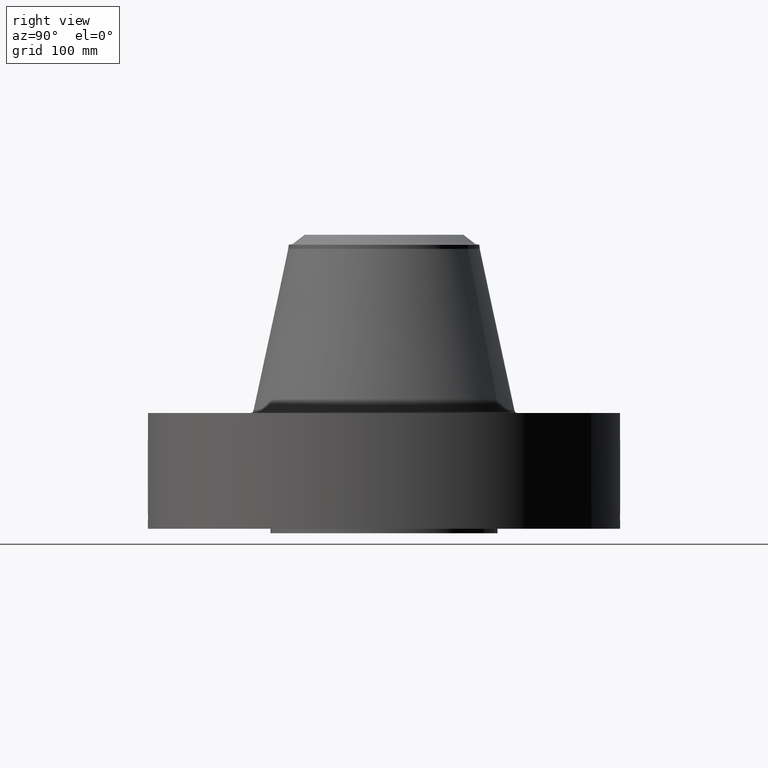
[diagram: clean part render]
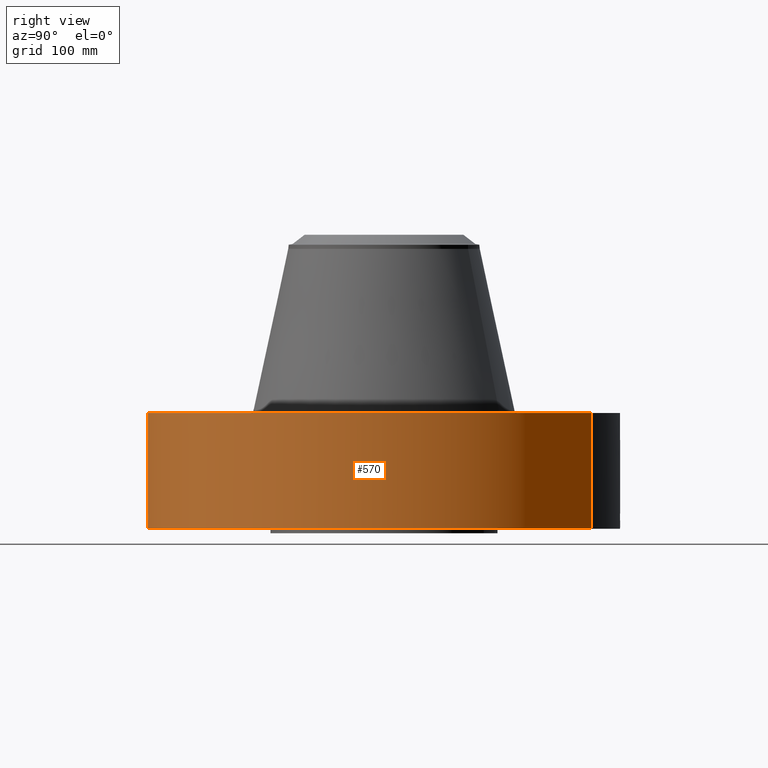
[diagram: same view with one face highlighted and labeled with its STEP entity id]
A machine part, right view. The second image highlights one B-rep face of the part: STEP entity #570.
In plain terms, the highlighted cylindrical surface (partial cylindrical patch) has radius 336.55 mm, axis along (0, 0, -1).
Its self-contained STEP definition (entity closure, byte-faithful):
#38=AXIS2_PLACEMENT_3D('Cylinder Axis2P3D',#35,#36,#37) ;
#169=AXIS2_PLACEMENT_3D('Circle Axis2P3D',#167,#168,$) ;
#474=AXIS2_PLACEMENT_3D('Circle Axis2P3D',#472,#473,$) ;
#35=CARTESIAN_POINT('Axis2P3D Location',(0.,0.,8.37500000003)) ;
#44=CARTESIAN_POINT('Vertex',(-6.35238838653,-11.6279689451,0.250000000001)) ;
#46=CARTESIAN_POINT('Vertex',(6.35238838653,11.6279689451,0.250000000001)) ;
#49=CARTESIAN_POINT('Line Origine',(-6.35238838653,-11.6279689451,3.50000000001)) ;
#53=CARTESIAN_POINT('Vertex',(-6.35238838653,-11.6279689451,6.75000000003)) ;
#60=CARTESIAN_POINT('Vertex',(6.35238838653,11.6279689451,6.75000000003)) ;
#63=CARTESIAN_POINT('Line Origine',(6.35238838653,11.6279689451,3.50000000001)) ;
#167=CARTESIAN_POINT('Axis2P3D Location',(0.,0.,0.250000000001)) ;
#472=CARTESIAN_POINT('Axis2P3D Location',(0.,0.,6.75000000003)) ;
#484=CARTESIAN_POINT('Control Point',(0.000716182179024,-13.2499999807,1.29411846097)) ;
#485=CARTESIAN_POINT('Control Point',(0.0191502653145,-13.2499989843,1.29408121945)) ;
#486=CARTESIAN_POINT('Control Point',(0.0375810939813,-13.2499592085,1.29260034336)) ;
#487=CARTESIAN_POINT('Control Point',(0.0557843614543,-13.2498825695,1.28969405279)) ;
#488=CARTESIAN_POINT('Vertex',(0.000715776774679,-13.2499999807,1.29411851031)) ;
#490=CARTESIAN_POINT('Vertex',(0.0557753377726,-13.2498828606,1.2896955122)) ;
#494=CARTESIAN_POINT('Control Point',(0.0557752409463,-13.2498826079,1.2896949601)) ;
#495=CARTESIAN_POINT('Control Point',(0.0960317888699,-13.2497131484,1.28519648012)) ;
#496=CARTESIAN_POINT('Control Point',(0.135627700012,-13.2493559782,1.27336881107)) ;
#497=CARTESIAN_POINT('Control Point',(0.172076085037,-13.2488825877,1.25501398008)) ;
#498=CARTESIAN_POINT('Vertex',(0.172076085037,-13.2488825877,1.25501398008)) ;
#502=CARTESIAN_POINT('Control Point',(0.0308574974484,-13.2499640685,0.531177487723)) ;
#503=CARTESIAN_POINT('Control Point',(0.100043950935,-13.249802942,0.53994175403)) ;
#504=CARTESIAN_POINT('Control Point',(0.166894350062,-13.2491956705,0.564145361277)) ;
#505=CARTESIAN_POINT('Control Point',(0.226589153242,-13.2482117099,0.6029618533)) ;
#506=CARTESIAN_POINT('Control Point',(0.299033939317,-13.2466912427,0.677002948608)) ;
#507=CARTESIAN_POINT('Control Point',(0.343806497753,-13.2455487155,0.767252961406)) ;
#508=CARTESIAN_POINT('Control Point',(0.355258005292,-13.2452407762,0.797964520687)) ;
#509=CARTESIAN_POINT('Control Point',(0.373767359905,-13.2447311356,0.869263562205)) ;
#510=CARTESIAN_POINT('Control Point',(0.375440893881,-13.2446781575,0.942604838015)) ;
#511=CARTESIAN_POINT('Control Point',(0.371062917438,-13.244805279,0.983230149875)) ;
#512=CARTESIAN_POINT('Control Point',(0.348620721246,-13.2454396498,1.07565637282)) ;
#513=CARTESIAN_POINT('Control Point',(0.299242591265,-13.2466708422,1.15702689299)) ;
#514=CARTESIAN_POINT('Control Point',(0.262809100424,-13.247490619,1.19795213548)) ;
#515=CARTESIAN_POINT('Control Point',(0.219645572182,-13.2482647566,1.23105873449)) ;
#516=CARTESIAN_POINT('Control Point',(0.172076085037,-13.2488825877,1.25501398008)) ;
#517=CARTESIAN_POINT('Vertex',(0.0308574974484,-13.2499640685,0.531177487723)) ;
#521=CARTESIAN_POINT('Control Point',(0.0308574974484,-13.2499640685,0.531177487723)) ;
#522=CARTESIAN_POINT('Control Point',(0.0205665787994,-13.2499880347,0.530872867649)) ;
#523=CARTESIAN_POINT('Control Point',(0.0102686489959,-13.2500000022,0.530938766678)) ;
#524=CARTESIAN_POINT('Control Point',(-2.72878355196E-006,-13.2500000001,0.531374667805)) ;
#525=CARTESIAN_POINT('Vertex',(-2.72878354359E-006,-13.2500000001,0.531374667805)) ;
#529=CARTESIAN_POINT('Control Point',(-0.192757893617,-13.2485978275,0.587169898879)) ;
#530=CARTESIAN_POINT('Control Point',(-0.149056428855,-13.2492336535,0.561897250206)) ;
#531=CARTESIAN_POINT('Control Point',(-0.101125994612,-13.2497395629,0.543730098778)) ;
#532=CARTESIAN_POINT('Control Point',(-0.0508093391959,-13.2499999896,0.533530819167)) ;
#533=CARTESIAN_POINT('Control Point',(-2.72878356371E-006,-13.2500000001,0.531374667805)) ;
#534=CARTESIAN_POINT('Vertex',(-0.192757893617,-13.2485978275,0.587169898879)) ;
#538=CARTESIAN_POINT('Control Point',(-0.192757893617,-13.2485978275,0.587169898879)) ;
#539=CARTESIAN_POINT('Control Point',(-0.249681211158,-13.2477696328,0.620088774015)) ;
#540=CARTESIAN_POINT('Control Point',(-0.299897745911,-13.2467332348,0.664307981501)) ;
#541=CARTESIAN_POINT('Control Point',(-0.340272602361,-13.2456768452,0.718329959235)) ;
#542=CARTESIAN_POINT('Control Point',(-0.384786930333,-13.2444230771,0.816408681381)) ;
#543=CARTESIAN_POINT('Control Point',(-0.393565265395,-13.2441521437,0.921704502706)) ;
#544=CARTESIAN_POINT('Control Point',(-0.391517982915,-13.2442146621,0.961814118149)) ;
#545=CARTESIAN_POINT('Control Point',(-0.377486119227,-13.2446358495,1.03665946438)) ;
#546=CARTESIAN_POINT('Control Point',(-0.34549204975,-13.2455094413,1.10505084832)) ;
#547=CARTESIAN_POINT('Control Point',(-0.326475931335,-13.246002738,1.13546988076)) ;
#548=CARTESIAN_POINT('Control Point',(-0.264616207971,-13.2474708185,1.21225153131)) ;
#549=CARTESIAN_POINT('Control Point',(-0.181234582802,-13.2489343562,1.26546431628)) ;
#550=CARTESIAN_POINT('Control Point',(-0.122123736438,-13.2496537486,1.2876337655)) ;
#551=CARTESIAN_POINT('Control Point',(-0.0605777055163,-13.2500001183,1.29712427102)) ;
#552=CARTESIAN_POINT('Control Point',(2.58579355407E-005,-13.25,1.2941529843)) ;
#553=CARTESIAN_POINT('Vertex',(2.5857935545E-005,-13.25,1.2941529843)) ;
#557=CARTESIAN_POINT('Control Point',(0.000715776764951,-13.2499999807,1.2941185103)) ;
#558=CARTESIAN_POINT('Control Point',(0.000370841803575,-13.2499999994,1.29413607037)) ;
#559=CARTESIAN_POINT('Control Point',(2.58579407351E-005,-13.25,1.2941529843)) ;
#36=DIRECTION('Axis2P3D Direction',(0.,0.,-0.0393700787402)) ;
#37=DIRECTION('Axis2P3D XDirection',(0.0188750212049,0.0345504945626,0.)) ;
#50=DIRECTION('Vector Direction',(0.,0.,-0.0393700787402)) ;
#64=DIRECTION('Vector Direction',(0.,0.,-0.0393700787402)) ;
#168=DIRECTION('Axis2P3D Direction',(0.,0.,-0.0393700787402)) ;
#473=DIRECTION('Axis2P3D Direction',(0.,0.,-0.0393700787402)) ;
#51=VECTOR('Line Direction',#50,0.0393700787402) ;
#65=VECTOR('Line Direction',#64,0.0393700787402) ;
#478=ORIENTED_EDGE('',*,*,#171,.F.) ;
#479=ORIENTED_EDGE('',*,*,#67,.T.) ;
#480=ORIENTED_EDGE('',*,*,#476,.T.) ;
#481=ORIENTED_EDGE('',*,*,#55,.F.) ;
#562=ORIENTED_EDGE('',*,*,#492,.T.) ;
#563=ORIENTED_EDGE('',*,*,#500,.T.) ;
#564=ORIENTED_EDGE('',*,*,#519,.F.) ;
#565=ORIENTED_EDGE('',*,*,#527,.T.) ;
#566=ORIENTED_EDGE('',*,*,#536,.F.) ;
#567=ORIENTED_EDGE('',*,*,#555,.T.) ;
#568=ORIENTED_EDGE('',*,*,#560,.F.) ;
#569=FACE_BOUND('',#561,.T.) ;
#570=ADVANCED_FACE('PartBody',(#482,#569),#39,.T.) ;
#483=B_SPLINE_CURVE_WITH_KNOTS('',3,(#484,#485,#486,#487),.UNSPECIFIED.,.F.,.U.,(4,4),(34.6164759059,36.6615629468),.UNSPECIFIED.) ;
#493=B_SPLINE_CURVE_WITH_KNOTS('',3,(#494,#495,#496,#497),.UNSPECIFIED.,.F.,.U.,(4,4),(0.,4.55152621404),.UNSPECIFIED.) ;
#501=B_SPLINE_CURVE_WITH_KNOTS('',5,(#502,#503,#504,#505,#506,#507,#508,#509,#510,#511,#512,#513,#514,#515,#516),.UNSPECIFIED.,.F.,.U.,(6,3,3,3,6),(0.,12.1199799924,17.9789266805,25.3567714415,35.2572454702),.UNSPECIFIED.) ;
#520=B_SPLINE_CURVE_WITH_KNOTS('',3,(#521,#522,#523,#524),.UNSPECIFIED.,.F.,.U.,(4,4),(0.,1.0734791093),.UNSPECIFIED.) ;
#528=B_SPLINE_CURVE_WITH_KNOTS('',4,(#529,#530,#531,#532,#533),.UNSPECIFIED.,.F.,.U.,(5,5),(0.,7.07984666736),.UNSPECIFIED.) ;
#537=B_SPLINE_CURVE_WITH_KNOTS('',5,(#538,#539,#540,#541,#542,#543,#544,#545,#546,#547,#548,#549,#550,#551,#552),.UNSPECIFIED.,.F.,.U.,(6,3,3,3,6),(0.,11.5273128214,18.5849259191,24.9929543052,36.3210179403),.UNSPECIFIED.) ;
#556=B_SPLINE_CURVE_WITH_KNOTS('',2,(#557,#558,#559),.UNSPECIFIED.,.F.,.U.,(3,3),(1.02660278465,1.05239664294),.UNSPECIFIED.) ;
#170=CIRCLE('generated circle',#169,13.2500000001) ;
#475=CIRCLE('generated circle',#474,13.2500000001) ;
#39=CYLINDRICAL_SURFACE('generated cylinder',#38,13.2500000001) ;
#55=EDGE_CURVE('',#45,#54,#52,.F.) ;
#67=EDGE_CURVE('',#47,#61,#66,.F.) ;
#171=EDGE_CURVE('',#47,#45,#170,.T.) ;
#476=EDGE_CURVE('',#61,#54,#475,.T.) ;
#492=EDGE_CURVE('',#489,#491,#483,.T.) ;
#500=EDGE_CURVE('',#491,#499,#493,.T.) ;
#519=EDGE_CURVE('',#518,#499,#501,.T.) ;
#527=EDGE_CURVE('',#518,#526,#520,.T.) ;
#536=EDGE_CURVE('',#535,#526,#528,.T.) ;
#555=EDGE_CURVE('',#535,#554,#537,.T.) ;
#560=EDGE_CURVE('',#489,#554,#556,.T.) ;
#477=EDGE_LOOP('',(#478,#479,#480,#481)) ;
#561=EDGE_LOOP('',(#562,#563,#564,#565,#566,#567,#568)) ;
#482=FACE_OUTER_BOUND('',#477,.T.) ;
#52=LINE('Line',#49,#51) ;
#66=LINE('Line',#63,#65) ;
#45=VERTEX_POINT('',#44) ;
#47=VERTEX_POINT('',#46) ;
#54=VERTEX_POINT('',#53) ;
#61=VERTEX_POINT('',#60) ;
#489=VERTEX_POINT('',#488) ;
#491=VERTEX_POINT('',#490) ;
#499=VERTEX_POINT('',#498) ;
#518=VERTEX_POINT('',#517) ;
#526=VERTEX_POINT('',#525) ;
#535=VERTEX_POINT('',#534) ;
#554=VERTEX_POINT('',#553) ;